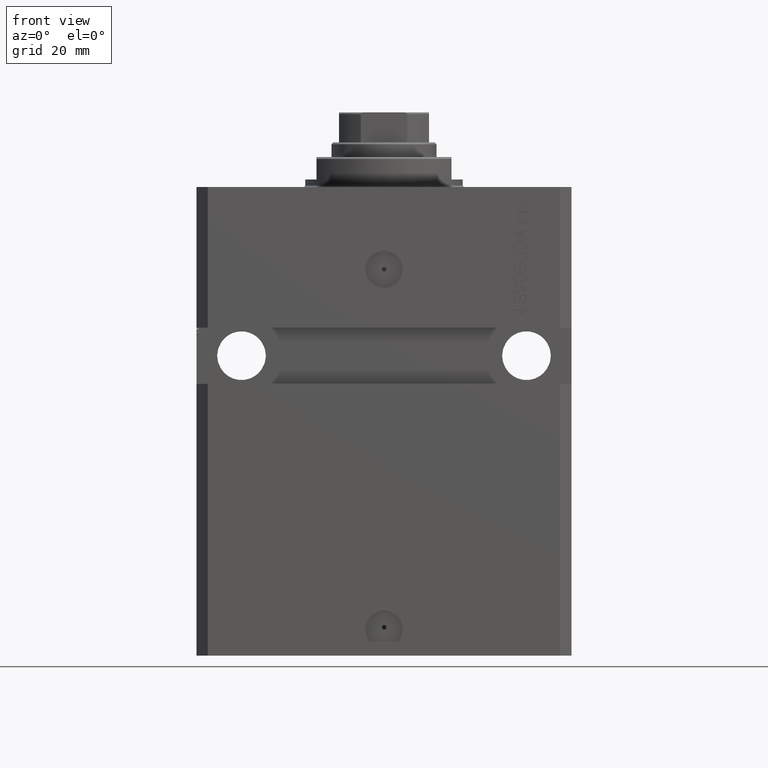
[diagram: clean part render]
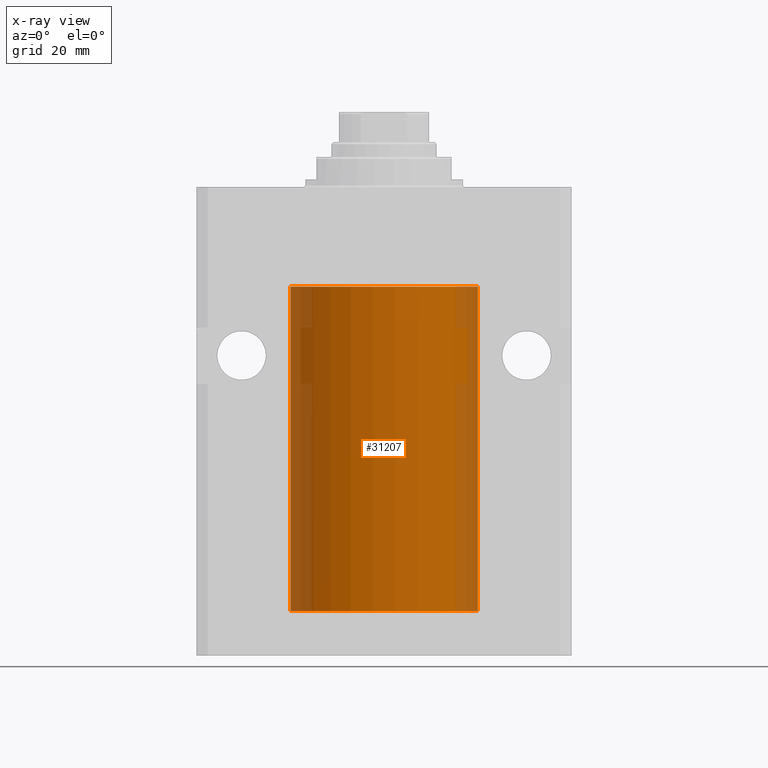
[diagram: x-ray — body ghosted, one internal face saturated and labeled with its STEP entity id]
A machine part, front view, then the same camera in x-ray: the body is ghosted and one INTERNAL B-rep face — a face not visible from any outside direction — is saturated and labeled: STEP entity #31207.
In plain terms, the highlighted cylindrical surface (partial cylindrical patch) has radius 25 mm, axis along (0, 0, 1).
Its self-contained STEP definition (entity closure, byte-faithful):
#150 = DIRECTION ( 'NONE',  ( 1.000000000000000000, 0.000000000000000000, 0.000000000000000000 ) ) ;
#195 = ORIENTED_EDGE ( 'NONE', *, *, #46859, .F. ) ;
#513 = DIRECTION ( 'NONE',  ( 1.000000000000000000, 0.000000000000000000, 0.000000000000000000 ) ) ;
#896 = ORIENTED_EDGE ( 'NONE', *, *, #46348, .T. ) ;
#2404 = EDGE_CURVE ( 'NONE', #37972, #21291, #45112, .T. ) ;
#2768 = EDGE_CURVE ( 'NONE', #27967, #17332, #40029, .T. ) ;
#3171 = CARTESIAN_POINT ( 'NONE',  ( -24.99999999999999645, -0.1631302912503610480, -111.1250000000001421 ) ) ;
#3982 = CARTESIAN_POINT ( 'NONE',  ( -25.00000000000000000, 3.061616997868383043E-15, -113.0999999999999943 ) ) ;
#5629 = CIRCLE ( 'NONE', #45631, 25.00000000000000000 ) ;
#7866 = CARTESIAN_POINT ( 'NONE',  ( 0.000000000000000000, 0.000000000000000000, -26.60000000000000142 ) ) ;
#8069 = ORIENTED_EDGE ( 'NONE', *, *, #2404, .T. ) ;
#8284 = DIRECTION ( 'NONE',  ( 1.000000000000000000, 0.000000000000000000, 0.000000000000000000 ) ) ;
#10176 = CARTESIAN_POINT ( 'NONE',  ( -25.00000000000000000, -2.540720905424995806E-14, -109.8750000000000000 ) ) ;
#10669 = CARTESIAN_POINT ( 'NONE',  ( -24.99218973898648599, -0.6248616403601209290, -110.6653718335254695 ) ) ;
#11894 = CYLINDRICAL_SURFACE ( 'NONE', #15360, 25.00000000000000000 ) ;
#12877 = EDGE_CURVE ( 'NONE', #27967, #18563, #5629, .T. ) ;
#14272 = CARTESIAN_POINT ( 'NONE',  ( -24.99813644420120795, -0.3263088753891773552, -111.0574119792819374 ) ) ;
#15106 = VECTOR ( 'NONE', #39781, 1000.000000000000000 ) ;
#15360 = AXIS2_PLACEMENT_3D ( 'NONE', #23419, #30667, #8284 ) ;
#15460 = ORIENTED_EDGE ( 'NONE', *, *, #2768, .T. ) ;
#15689 = CARTESIAN_POINT ( 'NONE',  ( 0.000000000000000000, 0.000000000000000000, -113.0999999999999943 ) ) ;
#16433 = FACE_OUTER_BOUND ( 'NONE', #18560, .T. ) ;
#16531 = EDGE_CURVE ( 'NONE', #17332, #24444, #27273, .T. ) ;
#17159 = CARTESIAN_POINT ( 'NONE',  ( -24.99812796309119634, -0.3269516851027584048, -109.9429046887702128 ) ) ;
#17332 = VERTEX_POINT ( 'NONE', #29841 ) ;
#17415 = DIRECTION ( 'NONE',  ( -0.000000000000000000, -0.000000000000000000, 1.000000000000000000 ) ) ;
#18116 = VECTOR ( 'NONE', #23511, 1000.000000000000000 ) ;
#18560 = EDGE_LOOP ( 'NONE', ( #31526, #15460, #22222, #896, #8069, #195 ) ) ;
#18563 = VERTEX_POINT ( 'NONE', #18662 ) ;
#18662 = CARTESIAN_POINT ( 'NONE',  ( 25.00000000000000000, 0.000000000000000000, -113.0999999999999943 ) ) ;
#18970 = CARTESIAN_POINT ( 'NONE',  ( -25.00000000000000000, 3.061616997868383043E-15, -113.0999999999999943 ) ) ;
#21291 = VERTEX_POINT ( 'NONE', #27338 ) ;
#21481 = CARTESIAN_POINT ( 'NONE',  ( -25.00000000000000000, -2.540720905424995806E-14, -109.8750000000000000 ) ) ;
#21995 = VECTOR ( 'NONE', #17415, 1000.000000000000000 ) ;
#22222 = ORIENTED_EDGE ( 'NONE', *, *, #16531, .T. ) ;
#23419 = CARTESIAN_POINT ( 'NONE',  ( 0.000000000000000000, 0.000000000000000000, -113.0999999999999943 ) ) ;
#23511 = DIRECTION ( 'NONE',  ( -0.000000000000000000, -0.000000000000000000, 1.000000000000000000 ) ) ;
#24444 = VERTEX_POINT ( 'NONE', #21481 ) ;
#25069 = CARTESIAN_POINT ( 'NONE',  ( -25.00000000000000000, 3.061616997868383043E-15, -113.0999999999999943 ) ) ;
#27273 = B_SPLINE_CURVE_WITH_KNOTS ( 'NONE', 3,
 ( #43654, #3171, #14272, #28463, #10669, #32084, #28700, #17159, #35944, #10176 ),
 .UNSPECIFIED., .F., .F.,
 ( 4, 2, 2, 2, 4 ),
 ( 0.001954111766881341111, 0.002442529193076332407, 0.002930946619271323703, 0.003419364045466314998, 0.003907781471661306294 ),
 .UNSPECIFIED. ) ;
#27338 = CARTESIAN_POINT ( 'NONE',  ( 25.00000000000000000, 0.000000000000000000, -26.60000000000000142 ) ) ;
#27967 = VERTEX_POINT ( 'NONE', #3982 ) ;
#28463 = CARTESIAN_POINT ( 'NONE',  ( -24.99406145684571001, -0.5569515746258935085, -110.8270940848234858 ) ) ;
#28700 = CARTESIAN_POINT ( 'NONE',  ( -24.99404783808660824, -0.5575587241817697715, -110.1738392125429868 ) ) ;
#29841 = CARTESIAN_POINT ( 'NONE',  ( -25.00000000000008171, 3.517566575222595158E-13, -111.1250000000032827 ) ) ;
#30514 = LINE ( 'NONE', #18970, #18116 ) ;
#30667 = DIRECTION ( 'NONE',  ( -0.000000000000000000, -0.000000000000000000, 1.000000000000000000 ) ) ;
#31207 = ADVANCED_FACE ( 'NONE', ( #16433 ), #11894, .F. ) ;
#31526 = ORIENTED_EDGE ( 'NONE', *, *, #12877, .F. ) ;
#32084 = CARTESIAN_POINT ( 'NONE',  ( -24.99218282981962247, -0.6251379207535883165, -110.3356756471091558 ) ) ;
#32347 = LINE ( 'NONE', #35717, #21995 ) ;
#33397 = DIRECTION ( 'NONE',  ( 0.000000000000000000, 0.000000000000000000, 1.000000000000000000 ) ) ;
#33524 = DIRECTION ( 'NONE',  ( 0.000000000000000000, 0.000000000000000000, 1.000000000000000000 ) ) ;
#35717 = CARTESIAN_POINT ( 'NONE',  ( 25.00000000000000000, 0.000000000000000000, -113.0999999999999943 ) ) ;
#35944 = CARTESIAN_POINT ( 'NONE',  ( -25.00000000000000355, -0.1651503688830821270, -109.8750000000000142 ) ) ;
#36161 = CARTESIAN_POINT ( 'NONE',  ( -25.00000000000000000, 3.061616997868383043E-15, -26.60000000000000142 ) ) ;
#37972 = VERTEX_POINT ( 'NONE', #36161 ) ;
#39781 = DIRECTION ( 'NONE',  ( -0.000000000000000000, -0.000000000000000000, 1.000000000000000000 ) ) ;
#40029 = LINE ( 'NONE', #25069, #15106 ) ;
#43654 = CARTESIAN_POINT ( 'NONE',  ( -25.00000000000008171, 3.517566575222595158E-13, -111.1250000000032827 ) ) ;
#45112 = CIRCLE ( 'NONE', #45961, 25.00000000000000000 ) ;
#45631 = AXIS2_PLACEMENT_3D ( 'NONE', #15689, #33524, #513 ) ;
#45961 = AXIS2_PLACEMENT_3D ( 'NONE', #7866, #33397, #150 ) ;
#46348 = EDGE_CURVE ( 'NONE', #24444, #37972, #30514, .T. ) ;
#46859 = EDGE_CURVE ( 'NONE', #18563, #21291, #32347, .T. ) ;